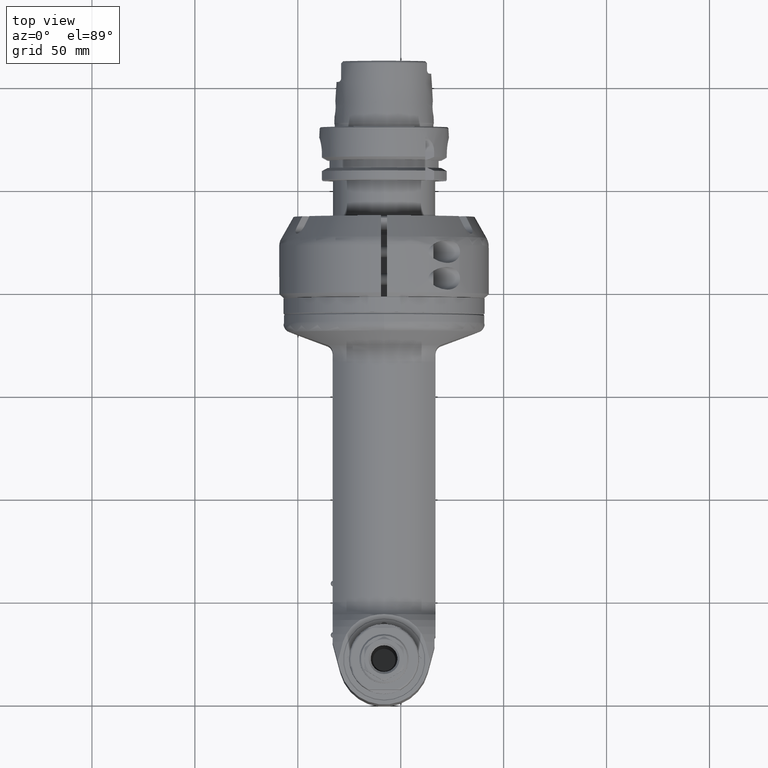
[diagram: clean part render]
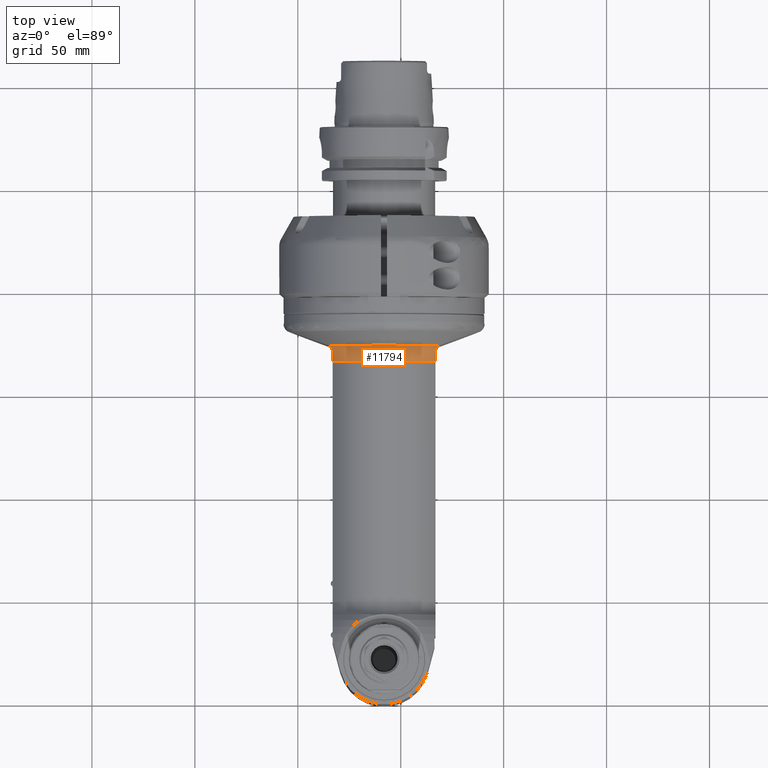
[diagram: same view with one face highlighted and labeled with its STEP entity id]
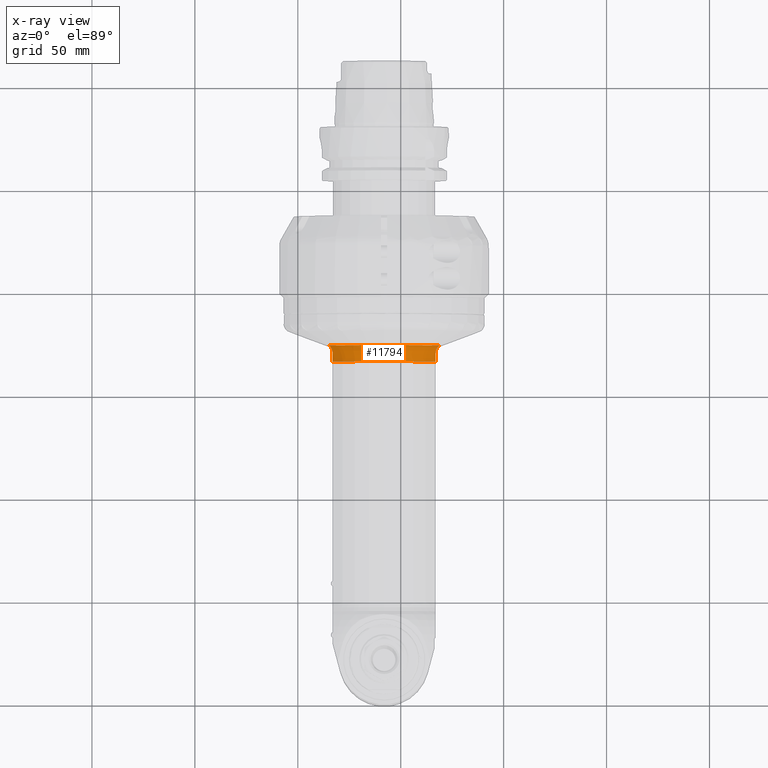
[diagram: x-ray of the same camera — body ghosted, the highlighted face saturated]
A machine part, top view. The second image highlights one B-rep face of the part: STEP entity #11794.
The next image is the same camera in x-ray: the body ghosted, the highlighted face saturated — about 0% of this face is hidden behind the body in this view.
In plain terms, the highlighted toroidal blend (fillet) surface has major radius 39 mm and minor (blend) radius 9 mm.
Its self-contained STEP definition (entity closure, byte-faithful):
#117=TOROIDAL_SURFACE('',#12943,39.,9.);
#1276=FACE_OUTER_BOUND('',#1973,.T.);
#1973=EDGE_LOOP('',(#9959,#9960,#9961,#9962,#9963,#9964));
#2577=CIRCLE('',#12939,34.5);
#2580=CIRCLE('',#12944,30.);
#2846=B_SPLINE_CURVE_WITH_KNOTS('',3,(#49874,#49875,#49876,#49877,#49878,
#49879,#49880,#49881),.UNSPECIFIED.,.F.,.F.,(4,2,2,4),(-3.1423743118532,
-3.00882891197884,-2.85940536172762,-2.68007420423771),.UNSPECIFIED.);
#2851=B_SPLINE_CURVE_WITH_KNOTS('',3,(#49982,#49983,#49984,#49985,#49986,
#49987,#49988,#49989,#49990,#49991),.UNSPECIFIED.,.F.,.F.,(4,2,2,2,4),(-6.59385884261585,
-6.58447781946052,-6.47340065522955,-6.27608158427149,-6.12835446153116),
 .UNSPECIFIED.);
#2856=B_SPLINE_CURVE_WITH_KNOTS('',3,(#50047,#50048,#50049,#50050,#50051,
#50052,#50053,#50054,#50055,#50056),.UNSPECIFIED.,.F.,.F.,(4,2,2,2,4),(3.59658856200033,
3.62659865115052,3.73684578082163,3.89042704672827,3.98683363643927),
 .UNSPECIFIED.);
#2857=B_SPLINE_CURVE_WITH_KNOTS('',3,(#50057,#50058,#50059,#50060,#50061,
#50062,#50063,#50064),.UNSPECIFIED.,.F.,.F.,(4,2,2,4),(2.68007420424878,
2.85940536172763,3.00882891197885,3.1423743118532),.UNSPECIFIED.);
#5426=VERTEX_POINT('',#49870);
#5428=VERTEX_POINT('',#49873);
#5450=VERTEX_POINT('',#49973);
#5454=VERTEX_POINT('',#50027);
#5458=VERTEX_POINT('',#50044);
#5459=VERTEX_POINT('',#50046);
#7052=EDGE_CURVE('',#5428,#5426,#2846,.T.);
#7076=EDGE_CURVE('',#5450,#5426,#2851,.T.);
#7082=EDGE_CURVE('',#5450,#5454,#2577,.T.);
#7087=EDGE_CURVE('',#5458,#5428,#2580,.T.);
#7088=EDGE_CURVE('',#5454,#5459,#2856,.T.);
#7089=EDGE_CURVE('',#5459,#5458,#2857,.T.);
#9959=ORIENTED_EDGE('',*,*,#7087,.T.);
#9960=ORIENTED_EDGE('',*,*,#7052,.T.);
#9961=ORIENTED_EDGE('',*,*,#7076,.F.);
#9962=ORIENTED_EDGE('',*,*,#7082,.T.);
#9963=ORIENTED_EDGE('',*,*,#7088,.T.);
#9964=ORIENTED_EDGE('',*,*,#7089,.T.);
#11794=ADVANCED_FACE('',(#1276),#117,.F.);
#12939=AXIS2_PLACEMENT_3D('',#50028,#15478,#15479);
#12943=AXIS2_PLACEMENT_3D('',#50043,#15486,#15487);
#12944=AXIS2_PLACEMENT_3D('',#50045,#15488,#15489);
#15478=DIRECTION('center_axis',(1.,0.,0.));
#15479=DIRECTION('ref_axis',(0.,-1.,0.));
#15486=DIRECTION('center_axis',(-1.,0.,0.));
#15487=DIRECTION('ref_axis',(0.,-1.,-1.22464679914735E-16));
#15488=DIRECTION('center_axis',(-1.,0.,0.));
#15489=DIRECTION('ref_axis',(0.,-0.552770798392605,-0.833333333333308));
#49870=CARTESIAN_POINT('',(30.80083019716,-18.54823604161,25.00000000003));
#49873=CARTESIAN_POINT('',(35.16580758197,-16.58312395178,25.));
#49874=CARTESIAN_POINT('Ctrl Pts',(35.16580758197,-16.583123951777,25.));
#49875=CARTESIAN_POINT('Ctrl Pts',(34.7206562490555,-16.583123951777,25.));
#49876=CARTESIAN_POINT('Ctrl Pts',(34.1920196550243,-16.6598919965139,25.));
#49877=CARTESIAN_POINT('Ctrl Pts',(33.2844305992261,-16.9167277905047,25.));
#49878=CARTESIAN_POINT('Ctrl Pts',(32.7382766269785,-17.1595326432425,25.));
#49879=CARTESIAN_POINT('Ctrl Pts',(31.7927287076695,-17.7134498027941,25.));
#49880=CARTESIAN_POINT('Ctrl Pts',(31.2768824717342,-18.1051437661404,25.));
#49881=CARTESIAN_POINT('Ctrl Pts',(30.8008301971795,-18.5482360416309,25.));
#49973=CARTESIAN_POINT('',(27.37157894783,-21.55092563201,26.9408166991));
#49982=CARTESIAN_POINT('Ctrl Pts',(27.371578947828,-21.5509256319589,26.94081669912));
#49983=CARTESIAN_POINT('Ctrl Pts',(27.3832154279562,-21.5428857418116,26.9214379415299));
#49984=CARTESIAN_POINT('Ctrl Pts',(27.3949674920727,-21.5345874428698,26.9022390043015));
#49985=CARTESIAN_POINT('Ctrl Pts',(27.5472100386132,-21.425040439272,26.658135080755));
#49986=CARTESIAN_POINT('Ctrl Pts',(27.7176933102897,-21.280522285381,26.4344728475626));
#49987=CARTESIAN_POINT('Ctrl Pts',(28.2887044363584,-20.7807655001042,25.8431255043235));
#49988=CARTESIAN_POINT('Ctrl Pts',(28.7791301612318,-20.342597000736,25.488301742797));
#49989=CARTESIAN_POINT('Ctrl Pts',(29.8381138706191,-19.4155756279299,25.0874310035341));
#49990=CARTESIAN_POINT('Ctrl Pts',(30.3182108618775,-18.9974407001947,25.0000000000387));
#49991=CARTESIAN_POINT('Ctrl Pts',(30.8008301971795,-18.5482360416309,25.));
#50027=CARTESIAN_POINT('',(27.37157894791,-21.55092563191,-26.94081669898));
#50028=CARTESIAN_POINT('Origin',(27.37157894791,0.,0.));
#50043=CARTESIAN_POINT('Origin',(35.16580758197,0.,0.));
#50044=CARTESIAN_POINT('',(35.16580758197,-16.58312395178,-25.));
#50045=CARTESIAN_POINT('Origin',(35.16580758197,0.,0.));
#50046=CARTESIAN_POINT('',(30.80083019725,-18.54823604153,-25.00000000002));
#50047=CARTESIAN_POINT('Ctrl Pts',(27.3715789479101,-21.5509256319022,-26.9408166989833));
#50048=CARTESIAN_POINT('Ctrl Pts',(27.4208401335489,-21.5168900372258,-26.8587798145909));
#50049=CARTESIAN_POINT('Ctrl Pts',(27.4721031814978,-21.4782962654302,-26.7801091443261));
#50050=CARTESIAN_POINT('Ctrl Pts',(27.7169404273544,-21.2852548148025,-26.4305321262481));
#50051=CARTESIAN_POINT('Ctrl Pts',(27.9572399572632,-21.0717129154017,-26.1620004341279));
#50052=CARTESIAN_POINT('Ctrl Pts',(28.6466925231107,-20.4603252622371,-25.5894490369269));
#50053=CARTESIAN_POINT('Ctrl Pts',(29.1461486309401,-20.0224758800888,-25.3103999101667));
#50054=CARTESIAN_POINT('Ctrl Pts',(30.0745482205174,-19.2074224565489,-25.0489408116182));
#50055=CARTESIAN_POINT('Ctrl Pts',(30.4392827280832,-18.8847513768686,-25.000000000021));
#50056=CARTESIAN_POINT('Ctrl Pts',(30.8008301972676,-18.5482360415489,-25.));
#50057=CARTESIAN_POINT('Ctrl Pts',(30.8008301972676,-18.5482360415489,-25.));
#50058=CARTESIAN_POINT('Ctrl Pts',(31.2768824717977,-18.1051437660918,-25.));
#50059=CARTESIAN_POINT('Ctrl Pts',(31.7927287077014,-17.7134498027754,-25.));
#50060=CARTESIAN_POINT('Ctrl Pts',(32.7382766269785,-17.1595326432425,-25.));
#50061=CARTESIAN_POINT('Ctrl Pts',(33.2844305992261,-16.9167277905047,-25.));
#50062=CARTESIAN_POINT('Ctrl Pts',(34.1920196550243,-16.6598919965139,-25.));
#50063=CARTESIAN_POINT('Ctrl Pts',(34.7206562490555,-16.583123951777,-25.));
#50064=CARTESIAN_POINT('Ctrl Pts',(35.16580758197,-16.583123951777,-25.));